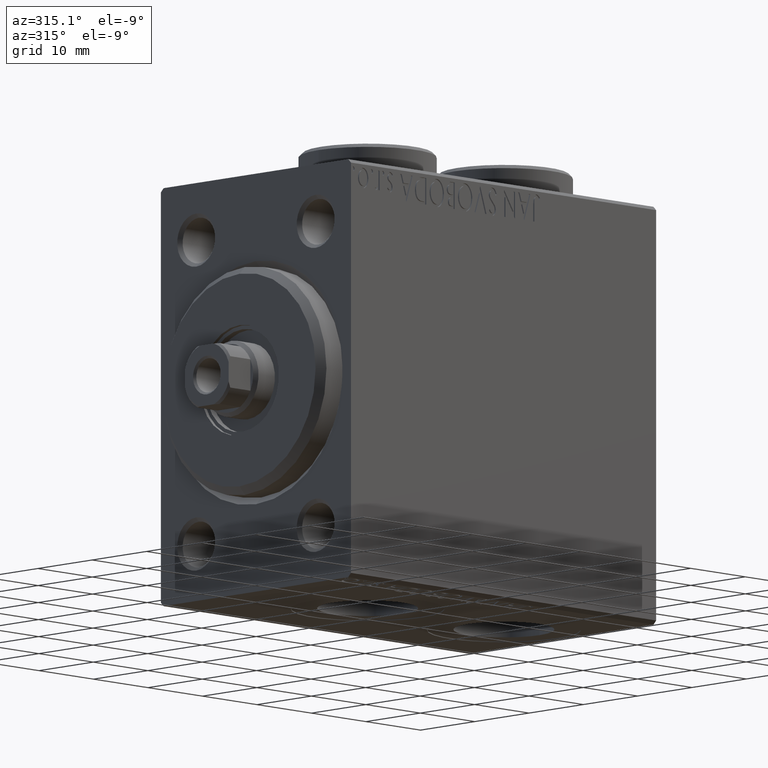
[diagram: clean part render]
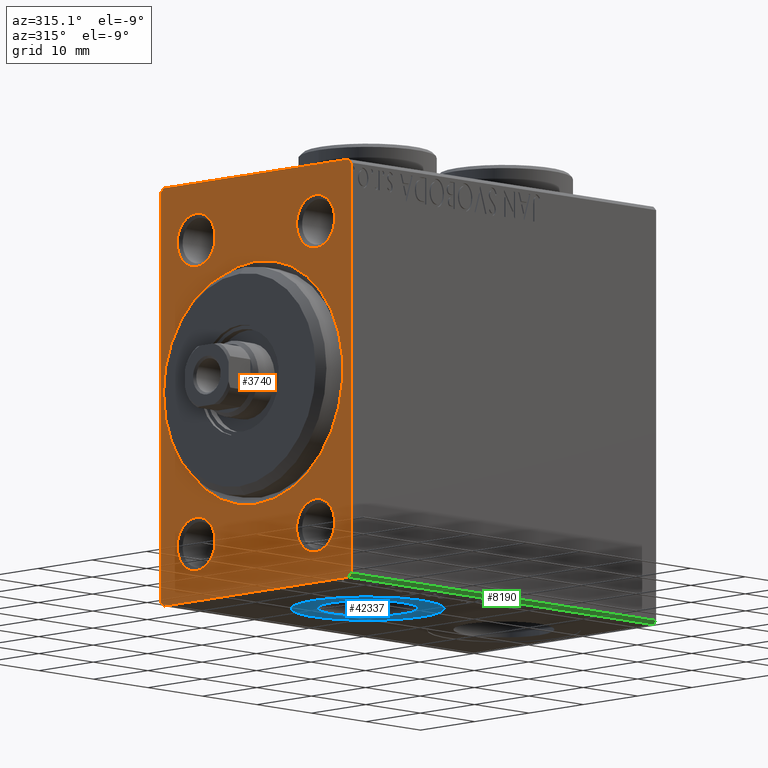
[diagram: same view with three faces highlighted in distinct colors, each labeled with its STEP entity id]
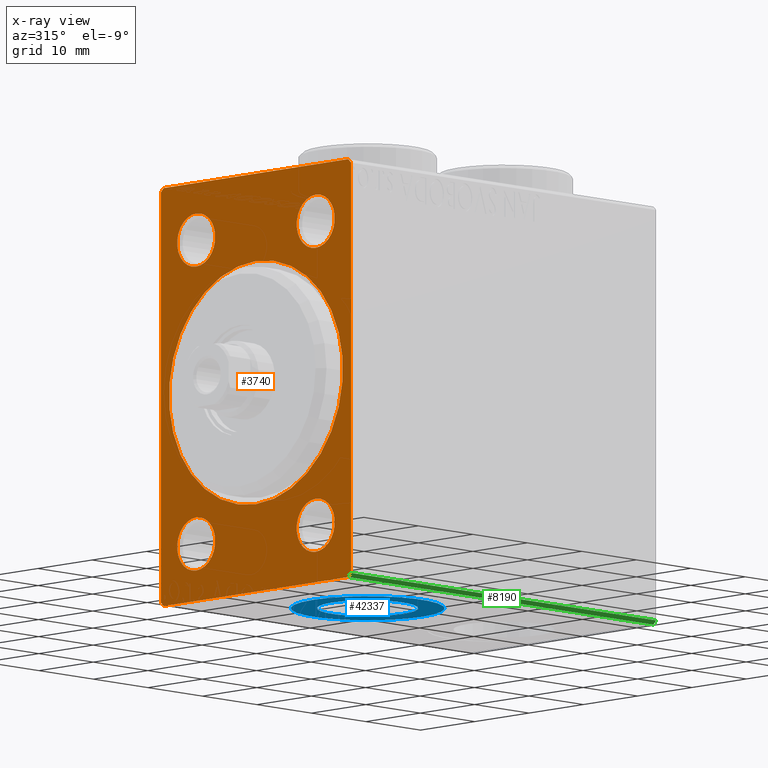
[diagram: x-ray of the same camera — body ghosted, the three highlighted faces saturated]
A machine part, auxiliary view with three faces highlighted in distinct colors.
The next image is the same camera in x-ray (body ghosted, the three faces saturated) — at least one of them is partly hidden behind the body in this view.
Their STEP definitions:

[orange] entity #3740 — the highlighted planar face has unit normal (1, 0, 0).
#307 = EDGE_LOOP ( 'NONE', ( #27148, #31364 ) ) ;
#608 = AXIS2_PLACEMENT_3D ( 'NONE', #9660, #12442, #26447 ) ;
#684 = ORIENTED_EDGE ( 'NONE', *, *, #34063, .F. ) ;
#932 = CARTESIAN_POINT ( 'NONE',  ( 0.000000000000000000, 0.000000000000000000, 16.00000000000001421 ) ) ;
#1225 = CARTESIAN_POINT ( 'NONE',  ( 0.000000000000000000, -11.00000000000000533, 23.50000000000001066 ) ) ;
#1793 = VECTOR ( 'NONE', #35614, 1000.000000000000000 ) ;
#1815 = ORIENTED_EDGE ( 'NONE', *, *, #34436, .T. ) ;
#2133 = EDGE_CURVE ( 'NONE', #32738, #10087, #34609, .T. ) ;
#2729 = LINE ( 'NONE', #9174, #24576 ) ;
#2790 = ORIENTED_EDGE ( 'NONE', *, *, #8582, .T. ) ;
#2820 = CARTESIAN_POINT ( 'NONE',  ( 0.000000000000000000, -16.99999999999998579, 27.49999999999998579 ) ) ;
#3259 = EDGE_CURVE ( 'NONE', #41226, #15682, #36122, .T. ) ;
#3480 = DIRECTION ( 'NONE',  ( 0.000000000000000000, 1.000000000000000000, -9.912705577010325549E-17 ) ) ;
#3740 = ADVANCED_FACE ( 'NONE', ( #4238, #11606, #25620, #28399, #23303, #29984 ), #9291, .F. ) ;
#3969 = CARTESIAN_POINT ( 'NONE',  ( 0.000000000000000000, -16.99999999999997513, -27.50000000000000711 ) ) ;
#4222 = DIRECTION ( 'NONE',  ( 1.000000000000000000, 0.000000000000000000, 0.000000000000000000 ) ) ;
#4238 = FACE_BOUND ( 'NONE', #19838, .T. ) ;
#5487 = CARTESIAN_POINT ( 'NONE',  ( 0.000000000000000000, 0.000000000000000000, 0.000000000000000000 ) ) ;
#5588 = DIRECTION ( 'NONE',  ( 1.000000000000000000, 0.000000000000000000, 0.000000000000000000 ) ) ;
#5937 = LINE ( 'NONE', #44611, #34176 ) ;
#5966 = DIRECTION ( 'NONE',  ( 0.000000000000000000, -1.261617073437677752E-16, 1.000000000000000000 ) ) ;
#6849 = ORIENTED_EDGE ( 'NONE', *, *, #15951, .T. ) ;
#7056 = VECTOR ( 'NONE', #26441, 1000.000000000000000 ) ;
#7213 = CIRCLE ( 'NONE', #608, 3.500000000000003109 ) ;
#7388 = CARTESIAN_POINT ( 'NONE',  ( 0.000000000000000000, -11.00000000000000533, 20.00000000000000711 ) ) ;
#7599 = ORIENTED_EDGE ( 'NONE', *, *, #3259, .T. ) ;
#8025 = EDGE_CURVE ( 'NONE', #21491, #10315, #27854, .T. ) ;
#8582 = EDGE_CURVE ( 'NONE', #34697, #31633, #13380, .T. ) ;
#8878 = EDGE_CURVE ( 'NONE', #25451, #17526, #21462, .T. ) ;
#8976 = VERTEX_POINT ( 'NONE', #2820 ) ;
#9174 = CARTESIAN_POINT ( 'NONE',  ( 0.000000000000000000, -17.49999999999999645, 27.49999999999998579 ) ) ;
#9291 = PLANE ( 'NONE',  #37527 ) ;
#9347 = CIRCLE ( 'NONE', #45354, 3.500000000000003109 ) ;
#9416 = EDGE_LOOP ( 'NONE', ( #23873, #42258 ) ) ;
#9568 = DIRECTION ( 'NONE',  ( 0.000000000000000000, 0.000000000000000000, -1.000000000000000000 ) ) ;
#9660 = CARTESIAN_POINT ( 'NONE',  ( 0.000000000000000000, 11.00000000000000178, -20.00000000000000000 ) ) ;
#10087 = VERTEX_POINT ( 'NONE', #932 ) ;
#10315 = VERTEX_POINT ( 'NONE', #19310 ) ;
#10339 = EDGE_CURVE ( 'NONE', #16080, #21995, #37495, .T. ) ;
#10425 = VECTOR ( 'NONE', #3480, 1000.000000000000000 ) ;
#10612 = DIRECTION ( 'NONE',  ( 1.000000000000000000, 0.000000000000000000, 0.000000000000000000 ) ) ;
#11606 = FACE_BOUND ( 'NONE', #9416, .T. ) ;
#11815 = CARTESIAN_POINT ( 'NONE',  ( 0.000000000000000000, 11.00000000000000178, 20.00000000000000711 ) ) ;
#11896 = DIRECTION ( 'NONE',  ( 0.000000000000000000, 0.000000000000000000, -1.000000000000000000 ) ) ;
#11969 = CARTESIAN_POINT ( 'NONE',  ( 0.000000000000000000, -11.00000000000000533, 16.50000000000000355 ) ) ;
#12142 = AXIS2_PLACEMENT_3D ( 'NONE', #7388, #10612, #18182 ) ;
#12407 = VERTEX_POINT ( 'NONE', #16363 ) ;
#12442 = DIRECTION ( 'NONE',  ( 1.000000000000000000, 0.000000000000000000, 0.000000000000000000 ) ) ;
#12621 = CARTESIAN_POINT ( 'NONE',  ( 0.000000000000000000, 17.50000000000000711, -27.00000000000000355 ) ) ;
#12716 = ORIENTED_EDGE ( 'NONE', *, *, #30580, .T. ) ;
#13380 = CIRCLE ( 'NONE', #39873, 3.500000000000003109 ) ;
#13845 = CARTESIAN_POINT ( 'NONE',  ( 0.000000000000000000, -17.49999999999999645, -27.50000000000000711 ) ) ;
#14209 = VERTEX_POINT ( 'NONE', #1225 ) ;
#15291 = AXIS2_PLACEMENT_3D ( 'NONE', #31774, #20961, #28325 ) ;
#15682 = VERTEX_POINT ( 'NONE', #30144 ) ;
#15951 = EDGE_CURVE ( 'NONE', #12407, #8976, #5937, .T. ) ;
#16080 = VERTEX_POINT ( 'NONE', #12621 ) ;
#16363 = CARTESIAN_POINT ( 'NONE',  ( 0.000000000000000000, -17.49999999999999645, 26.99999999999997868 ) ) ;
#16377 = ORIENTED_EDGE ( 'NONE', *, *, #43181, .T. ) ;
#16618 = DIRECTION ( 'NONE',  ( 0.000000000000000000, 0.000000000000000000, -1.000000000000000000 ) ) ;
#17081 = EDGE_LOOP ( 'NONE', ( #2790, #1815 ) ) ;
#17448 = AXIS2_PLACEMENT_3D ( 'NONE', #27030, #41102, #9568 ) ;
#17487 = CARTESIAN_POINT ( 'NONE',  ( 0.000000000000000000, 16.99999999999998579, 27.49999999999999289 ) ) ;
#17526 = VERTEX_POINT ( 'NONE', #34400 ) ;
#18182 = DIRECTION ( 'NONE',  ( 0.000000000000000000, 0.000000000000000000, -1.000000000000000000 ) ) ;
#18847 = VERTEX_POINT ( 'NONE', #39125 ) ;
#19180 = AXIS2_PLACEMENT_3D ( 'NONE', #5487, #29193, #40470 ) ;
#19310 = CARTESIAN_POINT ( 'NONE',  ( 0.000000000000000000, 16.99999999999999289, -27.50000000000001066 ) ) ;
#19512 = DIRECTION ( 'NONE',  ( 0.000000000000000000, 0.000000000000000000, -1.000000000000000000 ) ) ;
#19538 = CARTESIAN_POINT ( 'NONE',  ( 0.000000000000000000, 1.959434878635766709E-15, -16.00000000000001421 ) ) ;
#19838 = EDGE_LOOP ( 'NONE', ( #16377, #43107 ) ) ;
#19839 = CARTESIAN_POINT ( 'NONE',  ( 0.000000000000000000, -11.00000000000000533, -20.00000000000000000 ) ) ;
#20376 = CARTESIAN_POINT ( 'NONE',  ( 0.000000000000000000, 16.99999999999998579, 27.49999999999999289 ) ) ;
#20763 = ORIENTED_EDGE ( 'NONE', *, *, #30356, .F. ) ;
#20961 = DIRECTION ( 'NONE',  ( 1.000000000000000000, 0.000000000000000000, 0.000000000000000000 ) ) ;
#20962 = CARTESIAN_POINT ( 'NONE',  ( 0.000000000000000000, 11.00000000000000178, 23.50000000000001066 ) ) ;
#21222 = CARTESIAN_POINT ( 'NONE',  ( 0.000000000000000000, -11.00000000000000533, 20.00000000000000711 ) ) ;
#21462 = CIRCLE ( 'NONE', #31762, 3.500000000000003109 ) ;
#21491 = VERTEX_POINT ( 'NONE', #39724 ) ;
#21609 = DIRECTION ( 'NONE',  ( -0.000000000000000000, 0.7071067811865500152, -0.7071067811865451302 ) ) ;
#21995 = VERTEX_POINT ( 'NONE', #36895 ) ;
#22715 = DIRECTION ( 'NONE',  ( 0.000000000000000000, 0.000000000000000000, -1.000000000000000000 ) ) ;
#23171 = DIRECTION ( 'NONE',  ( 1.000000000000000000, 0.000000000000000000, 0.000000000000000000 ) ) ;
#23224 = LINE ( 'NONE', #36830, #7056 ) ;
#23278 = EDGE_CURVE ( 'NONE', #21491, #18847, #28585, .T. ) ;
#23303 = FACE_BOUND ( 'NONE', #36752, .T. ) ;
#23873 = ORIENTED_EDGE ( 'NONE', *, *, #8878, .T. ) ;
#24048 = CIRCLE ( 'NONE', #17448, 16.00000000000001421 ) ;
#24132 = CARTESIAN_POINT ( 'NONE',  ( 0.000000000000000000, 17.50000000000000711, -27.50000000000001066 ) ) ;
#24430 = VECTOR ( 'NONE', #5966, 1000.000000000000000 ) ;
#24576 = VECTOR ( 'NONE', #19512, 1000.000000000000000 ) ;
#24650 = VERTEX_POINT ( 'NONE', #11969 ) ;
#25094 = AXIS2_PLACEMENT_3D ( 'NONE', #39975, #36972, #11896 ) ;
#25451 = VERTEX_POINT ( 'NONE', #31591 ) ;
#25620 = FACE_BOUND ( 'NONE', #307, .T. ) ;
#25823 = DIRECTION ( 'NONE',  ( 0.000000000000000000, 0.000000000000000000, -1.000000000000000000 ) ) ;
#26263 = CARTESIAN_POINT ( 'NONE',  ( 0.000000000000000000, 11.00000000000000178, 16.50000000000000355 ) ) ;
#26441 = DIRECTION ( 'NONE',  ( 0.000000000000000000, -1.000000000000000000, -1.982541115402065356E-16 ) ) ;
#26447 = DIRECTION ( 'NONE',  ( 0.000000000000000000, 0.000000000000000000, -1.000000000000000000 ) ) ;
#27030 = CARTESIAN_POINT ( 'NONE',  ( 0.000000000000000000, 0.000000000000000000, 0.000000000000000000 ) ) ;
#27148 = ORIENTED_EDGE ( 'NONE', *, *, #38233, .T. ) ;
#27298 = CARTESIAN_POINT ( 'NONE',  ( 0.000000000000000000, 11.00000000000000178, -16.49999999999999645 ) ) ;
#27854 = LINE ( 'NONE', #13845, #10425 ) ;
#28325 = DIRECTION ( 'NONE',  ( 0.000000000000000000, 0.000000000000000000, -1.000000000000000000 ) ) ;
#28399 = FACE_BOUND ( 'NONE', #17081, .T. ) ;
#28585 = LINE ( 'NONE', #3969, #45391 ) ;
#29193 = DIRECTION ( 'NONE',  ( 1.000000000000000000, 0.000000000000000000, 0.000000000000000000 ) ) ;
#29522 = ORIENTED_EDGE ( 'NONE', *, *, #40167, .T. ) ;
#29755 = CARTESIAN_POINT ( 'NONE',  ( 0.000000000000000000, 17.50000000000000711, -27.00000000000000355 ) ) ;
#29984 = FACE_OUTER_BOUND ( 'NONE', #45128, .T. ) ;
#30144 = CARTESIAN_POINT ( 'NONE',  ( 0.000000000000000000, 11.00000000000000178, -23.50000000000000355 ) ) ;
#30356 = EDGE_CURVE ( 'NONE', #12407, #18847, #2729, .T. ) ;
#30580 = EDGE_CURVE ( 'NONE', #16080, #10315, #44042, .T. ) ;
#31098 = EDGE_CURVE ( 'NONE', #37809, #21995, #38444, .T. ) ;
#31226 = ORIENTED_EDGE ( 'NONE', *, *, #8025, .F. ) ;
#31364 = ORIENTED_EDGE ( 'NONE', *, *, #32452, .T. ) ;
#31591 = CARTESIAN_POINT ( 'NONE',  ( 0.000000000000000000, -11.00000000000000533, -16.49999999999999645 ) ) ;
#31633 = VERTEX_POINT ( 'NONE', #26263 ) ;
#31762 = AXIS2_PLACEMENT_3D ( 'NONE', #19839, #5588, #16618 ) ;
#31774 = CARTESIAN_POINT ( 'NONE',  ( 0.000000000000000000, -11.00000000000000533, -20.00000000000000000 ) ) ;
#32452 = EDGE_CURVE ( 'NONE', #24650, #14209, #41545, .T. ) ;
#32738 = VERTEX_POINT ( 'NONE', #19538 ) ;
#33453 = DIRECTION ( 'NONE',  ( 0.000000000000000000, 0.000000000000000000, -1.000000000000000000 ) ) ;
#33492 = CIRCLE ( 'NONE', #44536, 3.500000000000003109 ) ;
#34063 = EDGE_CURVE ( 'NONE', #37809, #8976, #23224, .T. ) ;
#34176 = VECTOR ( 'NONE', #40248, 1000.000000000000114 ) ;
#34400 = CARTESIAN_POINT ( 'NONE',  ( 0.000000000000000000, -11.00000000000000533, -23.50000000000000355 ) ) ;
#34436 = EDGE_CURVE ( 'NONE', #31633, #34697, #33492, .T. ) ;
#34609 = CIRCLE ( 'NONE', #19180, 16.00000000000001421 ) ;
#34697 = VERTEX_POINT ( 'NONE', #20962 ) ;
#35135 = CIRCLE ( 'NONE', #15291, 3.500000000000003109 ) ;
#35279 = DIRECTION ( 'NONE',  ( 1.000000000000000000, 0.000000000000000000, 0.000000000000000000 ) ) ;
#35511 = DIRECTION ( 'NONE',  ( 0.000000000000000000, 0.000000000000000000, -1.000000000000000000 ) ) ;
#35614 = DIRECTION ( 'NONE',  ( 0.000000000000000000, -0.7071067811865524577, -0.7071067811865426878 ) ) ;
#35965 = DIRECTION ( 'NONE',  ( -0.000000000000000000, -0.7071067811865474617, 0.7071067811865474617 ) ) ;
#36122 = CIRCLE ( 'NONE', #25094, 3.500000000000003109 ) ;
#36752 = EDGE_LOOP ( 'NONE', ( #7599, #29522 ) ) ;
#36830 = CARTESIAN_POINT ( 'NONE',  ( 0.000000000000000000, 17.50000000000000000, 27.49999999999999289 ) ) ;
#36895 = CARTESIAN_POINT ( 'NONE',  ( 0.000000000000000000, 17.50000000000000000, 26.99999999999998224 ) ) ;
#36972 = DIRECTION ( 'NONE',  ( 1.000000000000000000, 0.000000000000000000, 0.000000000000000000 ) ) ;
#37322 = ORIENTED_EDGE ( 'NONE', *, *, #23278, .T. ) ;
#37364 = CARTESIAN_POINT ( 'NONE',  ( 0.000000000000000000, 0.000000000000000000, 0.000000000000000000 ) ) ;
#37495 = LINE ( 'NONE', #24132, #24430 ) ;
#37527 = AXIS2_PLACEMENT_3D ( 'NONE', #37364, #41045, #33453 ) ;
#37809 = VERTEX_POINT ( 'NONE', #20376 ) ;
#38233 = EDGE_CURVE ( 'NONE', #14209, #24650, #9347, .T. ) ;
#38444 = LINE ( 'NONE', #17487, #40038 ) ;
#39125 = CARTESIAN_POINT ( 'NONE',  ( 0.000000000000000000, -17.49999999999999645, -26.99999999999998579 ) ) ;
#39724 = CARTESIAN_POINT ( 'NONE',  ( 0.000000000000000000, -16.99999999999997513, -27.50000000000000711 ) ) ;
#39873 = AXIS2_PLACEMENT_3D ( 'NONE', #40231, #23171, #22715 ) ;
#39892 = EDGE_CURVE ( 'NONE', #17526, #25451, #35135, .T. ) ;
#39975 = CARTESIAN_POINT ( 'NONE',  ( 0.000000000000000000, 11.00000000000000178, -20.00000000000000000 ) ) ;
#40038 = VECTOR ( 'NONE', #21609, 1000.000000000000114 ) ;
#40167 = EDGE_CURVE ( 'NONE', #15682, #41226, #7213, .T. ) ;
#40231 = CARTESIAN_POINT ( 'NONE',  ( 0.000000000000000000, 11.00000000000000178, 20.00000000000000711 ) ) ;
#40248 = DIRECTION ( 'NONE',  ( -0.000000000000000000, 0.7071067811865474617, 0.7071067811865474617 ) ) ;
#40470 = DIRECTION ( 'NONE',  ( 0.000000000000000000, 0.000000000000000000, -1.000000000000000000 ) ) ;
#41045 = DIRECTION ( 'NONE',  ( 1.000000000000000000, 0.000000000000000000, 0.000000000000000000 ) ) ;
#41102 = DIRECTION ( 'NONE',  ( 1.000000000000000000, 0.000000000000000000, 0.000000000000000000 ) ) ;
#41226 = VERTEX_POINT ( 'NONE', #27298 ) ;
#41545 = CIRCLE ( 'NONE', #12142, 3.500000000000003109 ) ;
#41844 = ORIENTED_EDGE ( 'NONE', *, *, #31098, .T. ) ;
#42258 = ORIENTED_EDGE ( 'NONE', *, *, #39892, .T. ) ;
#42513 = ORIENTED_EDGE ( 'NONE', *, *, #10339, .F. ) ;
#43107 = ORIENTED_EDGE ( 'NONE', *, *, #2133, .T. ) ;
#43181 = EDGE_CURVE ( 'NONE', #10087, #32738, #24048, .T. ) ;
#44042 = LINE ( 'NONE', #29755, #1793 ) ;
#44536 = AXIS2_PLACEMENT_3D ( 'NONE', #11815, #4222, #25823 ) ;
#44611 = CARTESIAN_POINT ( 'NONE',  ( 0.000000000000000000, -17.49999999999999645, 26.99999999999997868 ) ) ;
#45128 = EDGE_LOOP ( 'NONE', ( #20763, #6849, #684, #41844, #42513, #12716, #31226, #37322 ) ) ;
#45354 = AXIS2_PLACEMENT_3D ( 'NONE', #21222, #35279, #35511 ) ;
#45391 = VECTOR ( 'NONE', #35965, 1000.000000000000114 ) ;

[blue] entity #42337 — the highlighted planar face has unit normal (0, 0, -1).
#784 = CARTESIAN_POINT ( 'NONE',  ( 10.50000000000000355, -5.452980245086756226E-15, -27.40000000000000924 ) ) ;
#1467 = DIRECTION ( 'NONE',  ( 0.000000000000000000, 0.000000000000000000, -1.000000000000000000 ) ) ;
#4243 = CIRCLE ( 'NONE', #42464, 6.580000000000002736 ) ;
#4911 = FACE_BOUND ( 'NONE', #24637, .T. ) ;
#5691 = AXIS2_PLACEMENT_3D ( 'NONE', #32987, #1467, #15039 ) ;
#7796 = AXIS2_PLACEMENT_3D ( 'NONE', #16913, #33507, #30038 ) ;
#8398 = ORIENTED_EDGE ( 'NONE', *, *, #33287, .T. ) ;
#9606 = CARTESIAN_POINT ( 'NONE',  ( 20.50000000000000355, -2.726986211408916281E-15, -27.40000000000000924 ) ) ;
#10285 = DIRECTION ( 'NONE',  ( 0.000000000000000000, 0.000000000000000000, -1.000000000000000000 ) ) ;
#15039 = DIRECTION ( 'NONE',  ( -1.000000000000000000, 0.000000000000000000, -0.000000000000000000 ) ) ;
#15309 = CARTESIAN_POINT ( 'NONE',  ( 13.92000000000000171, -2.726986211408916281E-15, -27.40000000000000924 ) ) ;
#15319 = DIRECTION ( 'NONE',  ( 0.000000000000000000, 0.000000000000000000, -1.000000000000000000 ) ) ;
#16913 = CARTESIAN_POINT ( 'NONE',  ( 20.50000000000000355, -5.452980245086756226E-15, -27.40000000000000924 ) ) ;
#19017 = ORIENTED_EDGE ( 'NONE', *, *, #39329, .F. ) ;
#19155 = PLANE ( 'NONE',  #5691 ) ;
#19863 = VERTEX_POINT ( 'NONE', #37944 ) ;
#20111 = CARTESIAN_POINT ( 'NONE',  ( 20.50000000000000355, -5.452980245086756226E-15, -27.40000000000000924 ) ) ;
#22431 = DIRECTION ( 'NONE',  ( -1.000000000000000000, 0.000000000000000000, 0.000000000000000000 ) ) ;
#22568 = EDGE_CURVE ( 'NONE', #19863, #42356, #27601, .T. ) ;
#22650 = DIRECTION ( 'NONE',  ( -1.000000000000000000, 0.000000000000000000, 0.000000000000000000 ) ) ;
#23400 = DIRECTION ( 'NONE',  ( -1.000000000000000000, 0.000000000000000000, 0.000000000000000000 ) ) ;
#23537 = ORIENTED_EDGE ( 'NONE', *, *, #26826, .F. ) ;
#24110 = EDGE_LOOP ( 'NONE', ( #8398, #28089 ) ) ;
#24466 = AXIS2_PLACEMENT_3D ( 'NONE', #9606, #10285, #23400 ) ;
#24637 = EDGE_LOOP ( 'NONE', ( #23537, #19017 ) ) ;
#25243 = VERTEX_POINT ( 'NONE', #15309 ) ;
#26826 = EDGE_CURVE ( 'NONE', #25243, #40934, #39907, .T. ) ;
#27601 = CIRCLE ( 'NONE', #7796, 10.00000000000000000 ) ;
#28089 = ORIENTED_EDGE ( 'NONE', *, *, #22568, .T. ) ;
#28321 = CIRCLE ( 'NONE', #34941, 10.00000000000000000 ) ;
#30038 = DIRECTION ( 'NONE',  ( -1.000000000000000000, 0.000000000000000000, 0.000000000000000000 ) ) ;
#32987 = CARTESIAN_POINT ( 'NONE',  ( 0.000000000000000000, 0.000000000000000000, -27.40000000000000924 ) ) ;
#33287 = EDGE_CURVE ( 'NONE', #42356, #19863, #28321, .T. ) ;
#33507 = DIRECTION ( 'NONE',  ( 0.000000000000000000, 0.000000000000000000, -1.000000000000000000 ) ) ;
#34166 = DIRECTION ( 'NONE',  ( 0.000000000000000000, 0.000000000000000000, -1.000000000000000000 ) ) ;
#34941 = AXIS2_PLACEMENT_3D ( 'NONE', #20111, #34166, #22650 ) ;
#36449 = FACE_OUTER_BOUND ( 'NONE', #24110, .T. ) ;
#37944 = CARTESIAN_POINT ( 'NONE',  ( 30.50000000000000711, -4.228333445939403167E-15, -27.40000000000000924 ) ) ;
#39329 = EDGE_CURVE ( 'NONE', #40934, #25243, #4243, .T. ) ;
#39717 = CARTESIAN_POINT ( 'NONE',  ( 20.50000000000000355, -2.726986211408916281E-15, -27.40000000000000924 ) ) ;
#39907 = CIRCLE ( 'NONE', #24466, 6.580000000000002736 ) ;
#40934 = VERTEX_POINT ( 'NONE', #43981 ) ;
#42337 = ADVANCED_FACE ( 'NONE', ( #4911, #36449 ), #19155, .T. ) ;
#42356 = VERTEX_POINT ( 'NONE', #784 ) ;
#42464 = AXIS2_PLACEMENT_3D ( 'NONE', #39717, #15319, #22431 ) ;
#43981 = CARTESIAN_POINT ( 'NONE',  ( 27.08000000000000540, -1.921168617569958028E-15, -27.40000000000000924 ) ) ;

[green] entity #8190 — the highlighted planar face has unit normal (0, 0.7071, 0.7071).
#291 = ORIENTED_EDGE ( 'NONE', *, *, #946, .F. ) ;
#946 = EDGE_CURVE ( 'NONE', #14152, #21491, #16662, .T. ) ;
#3299 = VECTOR ( 'NONE', #14454, 1000.000000000000114 ) ;
#3937 = PLANE ( 'NONE',  #5301 ) ;
#3969 = CARTESIAN_POINT ( 'NONE',  ( 0.000000000000000000, -16.99999999999997513, -27.50000000000000711 ) ) ;
#4166 = CARTESIAN_POINT ( 'NONE',  ( 56.00000000000000000, -16.99999999999997513, -27.50000000000000711 ) ) ;
#5301 = AXIS2_PLACEMENT_3D ( 'NONE', #4166, #11072, #18193 ) ;
#6466 = CARTESIAN_POINT ( 'NONE',  ( 56.00000000000000000, -17.49999999999999645, -26.99999999999998579 ) ) ;
#8190 = ADVANCED_FACE ( 'NONE', ( #21406 ), #3937, .F. ) ;
#8231 = CARTESIAN_POINT ( 'NONE',  ( 56.00000000000000000, -22.24999999999999289, -22.24999999999999289 ) ) ;
#8589 = CARTESIAN_POINT ( 'NONE',  ( 56.00000000000000000, -16.99999999999997513, -27.50000000000000711 ) ) ;
#11072 = DIRECTION ( 'NONE',  ( 0.000000000000000000, 0.7071067811865475727, 0.7071067811865475727 ) ) ;
#12620 = ORIENTED_EDGE ( 'NONE', *, *, #23278, .F. ) ;
#14152 = VERTEX_POINT ( 'NONE', #8589 ) ;
#14454 = DIRECTION ( 'NONE',  ( -0.000000000000000000, 0.7071067811865474617, -0.7071067811865474617 ) ) ;
#14673 = EDGE_LOOP ( 'NONE', ( #44387, #43866, #12620, #291 ) ) ;
#16662 = LINE ( 'NONE', #30695, #32365 ) ;
#18193 = DIRECTION ( 'NONE',  ( -1.000000000000000000, 0.000000000000000000, 0.000000000000000000 ) ) ;
#18847 = VERTEX_POINT ( 'NONE', #39125 ) ;
#20484 = DIRECTION ( 'NONE',  ( 1.000000000000000000, 0.000000000000000000, 0.000000000000000000 ) ) ;
#21406 = FACE_OUTER_BOUND ( 'NONE', #14673, .T. ) ;
#21491 = VERTEX_POINT ( 'NONE', #39724 ) ;
#23278 = EDGE_CURVE ( 'NONE', #21491, #18847, #28585, .T. ) ;
#23944 = LINE ( 'NONE', #6466, #24051 ) ;
#24051 = VECTOR ( 'NONE', #20484, 1000.000000000000000 ) ;
#28585 = LINE ( 'NONE', #3969, #45391 ) ;
#30695 = CARTESIAN_POINT ( 'NONE',  ( 56.00000000000000000, -16.99999999999997513, -27.50000000000000711 ) ) ;
#31767 = DIRECTION ( 'NONE',  ( -1.000000000000000000, -0.000000000000000000, 0.000000000000000000 ) ) ;
#32058 = EDGE_CURVE ( 'NONE', #40490, #14152, #36533, .T. ) ;
#32365 = VECTOR ( 'NONE', #31767, 1000.000000000000000 ) ;
#34847 = CARTESIAN_POINT ( 'NONE',  ( 56.00000000000000000, -17.49999999999999645, -26.99999999999998579 ) ) ;
#35965 = DIRECTION ( 'NONE',  ( -0.000000000000000000, -0.7071067811865474617, 0.7071067811865474617 ) ) ;
#36533 = LINE ( 'NONE', #8231, #3299 ) ;
#37348 = EDGE_CURVE ( 'NONE', #18847, #40490, #23944, .T. ) ;
#39125 = CARTESIAN_POINT ( 'NONE',  ( 0.000000000000000000, -17.49999999999999645, -26.99999999999998579 ) ) ;
#39724 = CARTESIAN_POINT ( 'NONE',  ( 0.000000000000000000, -16.99999999999997513, -27.50000000000000711 ) ) ;
#40490 = VERTEX_POINT ( 'NONE', #34847 ) ;
#43866 = ORIENTED_EDGE ( 'NONE', *, *, #37348, .F. ) ;
#44387 = ORIENTED_EDGE ( 'NONE', *, *, #32058, .F. ) ;
#45391 = VECTOR ( 'NONE', #35965, 1000.000000000000114 ) ;